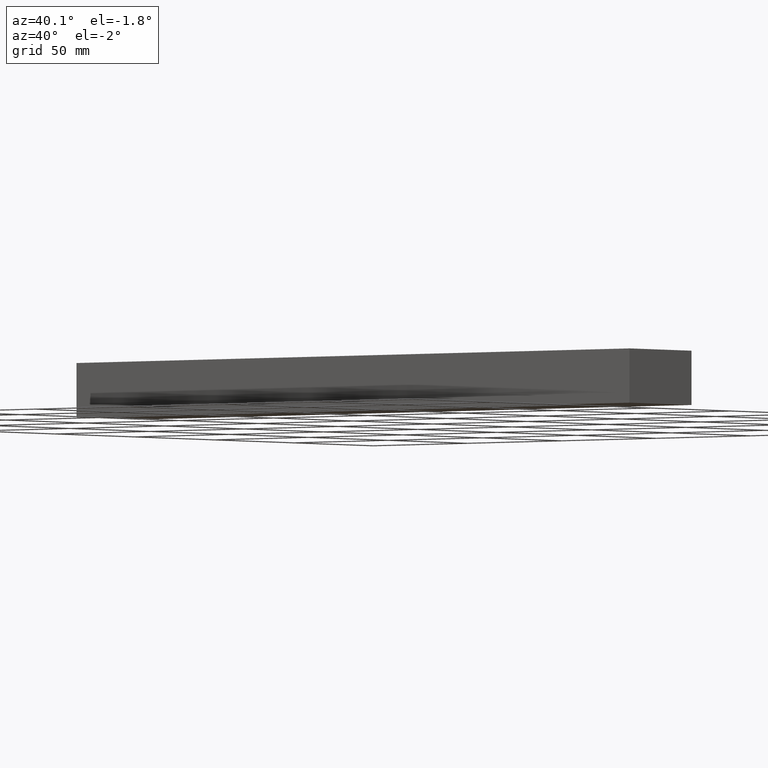
[diagram: clean part render]
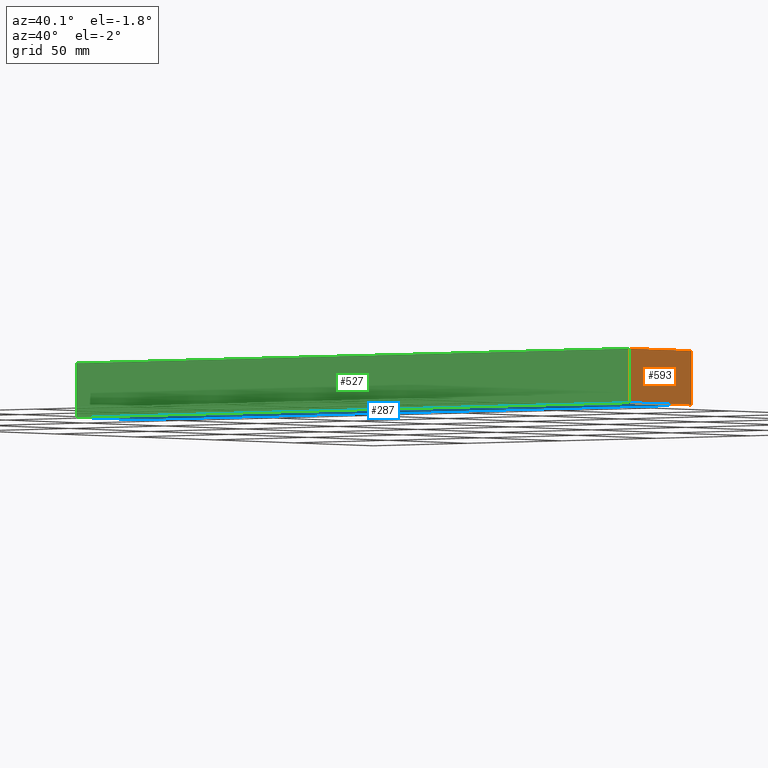
[diagram: same view with three faces highlighted in distinct colors, each labeled with its STEP entity id]
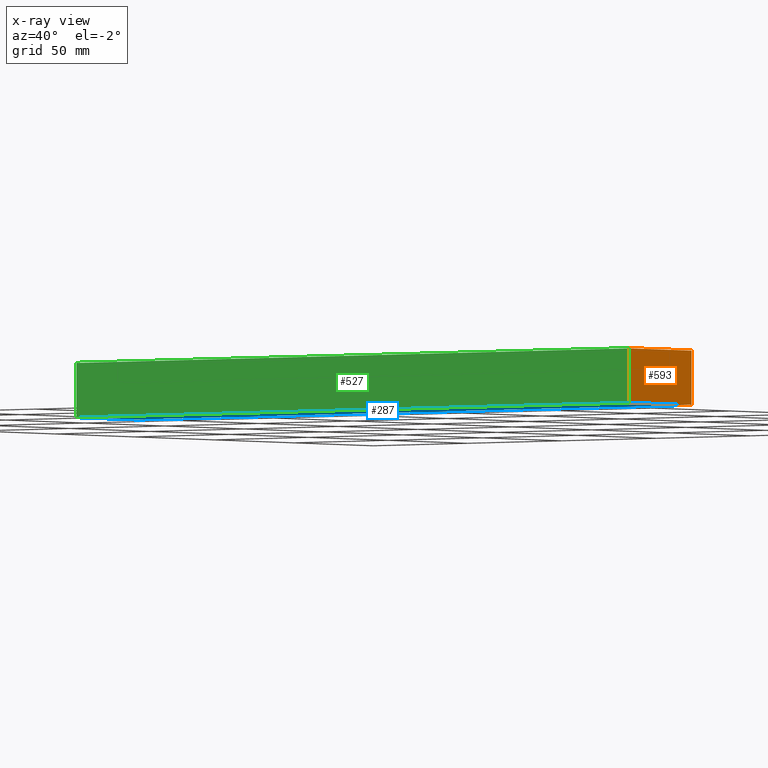
[diagram: x-ray of the same camera — body ghosted, the three highlighted faces saturated]
A machine part, auxiliary view with three faces highlighted in distinct colors.
The next image is the same camera in x-ray (body ghosted, the three faces saturated) — at least one of them is partly hidden behind the body in this view.
Their STEP definitions:

[orange] entity #593 — the highlighted planar face has unit normal (-1, -0, 0).
#593 = ADVANCED_FACE( '', ( #1296 ), #1297, .F. );
#1296 = FACE_OUTER_BOUND( '', #2083, .T. );
#1297 = PLANE( '', #2084 );
#2083 = EDGE_LOOP( '', ( #4277, #4278, #4279, #4280 ) );
#2084 = AXIS2_PLACEMENT_3D( '', #4281, #4282, #4283 );
#4277 = ORIENTED_EDGE( '', *, *, #5166, .T. );
#4278 = ORIENTED_EDGE( '', *, *, #5676, .F. );
#4279 = ORIENTED_EDGE( '', *, *, #5366, .F. );
#4280 = ORIENTED_EDGE( '', *, *, #5748, .T. );
#4281 = CARTESIAN_POINT( '', ( 146.500000000000, 5.92049001115088E-015, 22.0000000000000 ) );
#4282 = DIRECTION( '', ( -1.00000000000000, -7.11681426041768E-016, 0.000000000000000 ) );
#4283 = DIRECTION( '', ( 7.11681426041768E-016, -1.00000000000000, 0.000000000000000 ) );
#5166 = EDGE_CURVE( '', #6044, #6042, #6045, .T. );
#5366 = EDGE_CURVE( '', #6417, #6419, #6420, .T. );
#5676 = EDGE_CURVE( '', #6419, #6042, #6870, .T. );
#5748 = EDGE_CURVE( '', #6417, #6044, #6959, .T. );
#6042 = VERTEX_POINT( '', #7398 );
#6044 = VERTEX_POINT( '', #7401 );
#6045 = LINE( '', #7402, #7403 );
#6417 = VERTEX_POINT( '', #8329 );
#6419 = VERTEX_POINT( '', #8332 );
#6420 = LINE( '', #8333, #8334 );
#6870 = LINE( '', #9523, #9524 );
#6959 = LINE( '', #9714, #9715 );
#7398 = CARTESIAN_POINT( '', ( 146.500000000000, 39.0000000000000, 0.000000000000000 ) );
#7401 = CARTESIAN_POINT( '', ( 146.500000000000, 5.92049001115088E-015, 0.000000000000000 ) );
#7402 = CARTESIAN_POINT( '', ( 146.500000000000, 5.92049001115088E-015, 0.000000000000000 ) );
#7403 = VECTOR( '', #10224, 1000.00000000000 );
#8329 = CARTESIAN_POINT( '', ( 146.500000000000, 5.92049001115088E-015, 22.0000000000000 ) );
#8332 = CARTESIAN_POINT( '', ( 146.500000000000, 39.0000000000000, 22.0000000000000 ) );
#8333 = CARTESIAN_POINT( '', ( 146.500000000000, 5.92049001115088E-015, 22.0000000000000 ) );
#8334 = VECTOR( '', #10501, 1000.00000000000 );
#9523 = CARTESIAN_POINT( '', ( 146.500000000000, 39.0000000000000, 22.0000000000000 ) );
#9524 = VECTOR( '', #10770, 1000.00000000000 );
#9714 = CARTESIAN_POINT( '', ( 146.500000000000, 5.92049001115088E-015, 22.0000000000000 ) );
#9715 = VECTOR( '', #10819, 1000.00000000000 );
#10224 = DIRECTION( '', ( -7.11681426041768E-016, 1.00000000000000, 0.000000000000000 ) );
#10501 = DIRECTION( '', ( -7.11681426041768E-016, 1.00000000000000, 0.000000000000000 ) );
#10770 = DIRECTION( '', ( 0.000000000000000, 0.000000000000000, -1.00000000000000 ) );
#10819 = DIRECTION( '', ( 0.000000000000000, 0.000000000000000, -1.00000000000000 ) );

[blue] entity #287 — the highlighted planar face has unit normal (0, 0, 1).
#287 = ADVANCED_FACE( '', ( #797 ), #798, .F. );
#797 = FACE_OUTER_BOUND( '', #1568, .T. );
#798 = PLANE( '', #1569 );
#1568 = EDGE_LOOP( '', ( #2414, #2415, #2416, #2417 ) );
#1569 = AXIS2_PLACEMENT_3D( '', #2418, #2419, #2420 );
#2414 = ORIENTED_EDGE( '', *, *, #5164, .F. );
#2415 = ORIENTED_EDGE( '', *, *, #5165, .F. );
#2416 = ORIENTED_EDGE( '', *, *, #5166, .F. );
#2417 = ORIENTED_EDGE( '', *, *, #5167, .F. );
#2418 = CARTESIAN_POINT( '', ( -146.500000000000, -1.20211781203687E-014, 0.000000000000000 ) );
#2419 = DIRECTION( '', ( 0.000000000000000, 0.000000000000000, 1.00000000000000 ) );
#2420 = DIRECTION( '', ( 1.00000000000000, 0.000000000000000, 0.000000000000000 ) );
#5164 = EDGE_CURVE( '', #6039, #6040, #6041, .T. );
#5165 = EDGE_CURVE( '', #6042, #6039, #6043, .T. );
#5166 = EDGE_CURVE( '', #6044, #6042, #6045, .T. );
#5167 = EDGE_CURVE( '', #6040, #6044, #6046, .T. );
#6039 = VERTEX_POINT( '', #7394 );
#6040 = VERTEX_POINT( '', #7395 );
#6041 = LINE( '', #7396, #7397 );
#6042 = VERTEX_POINT( '', #7398 );
#6043 = LINE( '', #7399, #7400 );
#6044 = VERTEX_POINT( '', #7401 );
#6045 = LINE( '', #7402, #7403 );
#6046 = LINE( '', #7404, #7405 );
#7394 = CARTESIAN_POINT( '', ( -146.500000000000, 39.0000000000000, 0.000000000000000 ) );
#7395 = CARTESIAN_POINT( '', ( -146.500000000000, -1.20211781203687E-014, 0.000000000000000 ) );
#7396 = CARTESIAN_POINT( '', ( -146.500000000000, 39.0000000000000, 0.000000000000000 ) );
#7397 = VECTOR( '', #10222, 1000.00000000000 );
#7398 = CARTESIAN_POINT( '', ( 146.500000000000, 39.0000000000000, 0.000000000000000 ) );
#7399 = CARTESIAN_POINT( '', ( 146.500000000000, 39.0000000000000, 0.000000000000000 ) );
#7400 = VECTOR( '', #10223, 1000.00000000000 );
#7401 = CARTESIAN_POINT( '', ( 146.500000000000, 5.92049001115088E-015, 0.000000000000000 ) );
#7402 = CARTESIAN_POINT( '', ( 146.500000000000, 5.92049001115088E-015, 0.000000000000000 ) );
#7403 = VECTOR( '', #10224, 1000.00000000000 );
#7404 = CARTESIAN_POINT( '', ( -146.500000000000, -1.20211781203687E-014, 0.000000000000000 ) );
#7405 = VECTOR( '', #10225, 1000.00000000000 );
#10222 = DIRECTION( '', ( -7.11681426041767E-016, -1.00000000000000, 0.000000000000000 ) );
#10223 = DIRECTION( '', ( -1.00000000000000, 1.65775622277647E-016, 0.000000000000000 ) );
#10224 = DIRECTION( '', ( -7.11681426041768E-016, 1.00000000000000, 0.000000000000000 ) );
#10225 = DIRECTION( '', ( 1.00000000000000, 6.12343622236165E-017, 0.000000000000000 ) );

[green] entity #527 — the highlighted planar face has unit normal (-0, 1, 0).
#527 = ADVANCED_FACE( '', ( #1196 ), #1197, .F. );
#1196 = FACE_OUTER_BOUND( '', #1980, .T. );
#1197 = PLANE( '', #1981 );
#1980 = EDGE_LOOP( '', ( #3915, #3916, #3917, #3918 ) );
#1981 = AXIS2_PLACEMENT_3D( '', #3919, #3920, #3921 );
#3915 = ORIENTED_EDGE( '', *, *, #5167, .T. );
#3916 = ORIENTED_EDGE( '', *, *, #5748, .F. );
#3917 = ORIENTED_EDGE( '', *, *, #5365, .F. );
#3918 = ORIENTED_EDGE( '', *, *, #5749, .T. );
#3919 = CARTESIAN_POINT( '', ( -146.500000000000, -1.20211781203687E-014, 22.0000000000000 ) );
#3920 = DIRECTION( '', ( -6.12343622236165E-017, 1.00000000000000, 0.000000000000000 ) );
#3921 = DIRECTION( '', ( -1.00000000000000, -6.12343622236165E-017, 0.000000000000000 ) );
#5167 = EDGE_CURVE( '', #6040, #6044, #6046, .T. );
#5365 = EDGE_CURVE( '', #6415, #6417, #6418, .T. );
#5748 = EDGE_CURVE( '', #6417, #6044, #6959, .T. );
#5749 = EDGE_CURVE( '', #6415, #6040, #6960, .T. );
#6040 = VERTEX_POINT( '', #7395 );
#6044 = VERTEX_POINT( '', #7401 );
#6046 = LINE( '', #7404, #7405 );
#6415 = VERTEX_POINT( '', #8326 );
#6417 = VERTEX_POINT( '', #8329 );
#6418 = LINE( '', #8330, #8331 );
#6959 = LINE( '', #9714, #9715 );
#6960 = LINE( '', #9716, #9717 );
#7395 = CARTESIAN_POINT( '', ( -146.500000000000, -1.20211781203687E-014, 0.000000000000000 ) );
#7401 = CARTESIAN_POINT( '', ( 146.500000000000, 5.92049001115088E-015, 0.000000000000000 ) );
#7404 = CARTESIAN_POINT( '', ( -146.500000000000, -1.20211781203687E-014, 0.000000000000000 ) );
#7405 = VECTOR( '', #10225, 1000.00000000000 );
#8326 = CARTESIAN_POINT( '', ( -146.500000000000, -1.20211781203687E-014, 22.0000000000000 ) );
#8329 = CARTESIAN_POINT( '', ( 146.500000000000, 5.92049001115088E-015, 22.0000000000000 ) );
#8330 = CARTESIAN_POINT( '', ( -146.500000000000, -1.20211781203687E-014, 22.0000000000000 ) );
#8331 = VECTOR( '', #10500, 1000.00000000000 );
#9714 = CARTESIAN_POINT( '', ( 146.500000000000, 5.92049001115088E-015, 22.0000000000000 ) );
#9715 = VECTOR( '', #10819, 1000.00000000000 );
#9716 = CARTESIAN_POINT( '', ( -146.500000000000, -1.20211781203687E-014, 22.0000000000000 ) );
#9717 = VECTOR( '', #10820, 1000.00000000000 );
#10225 = DIRECTION( '', ( 1.00000000000000, 6.12343622236165E-017, 0.000000000000000 ) );
#10500 = DIRECTION( '', ( 1.00000000000000, 6.12343622236165E-017, 0.000000000000000 ) );
#10819 = DIRECTION( '', ( 0.000000000000000, 0.000000000000000, -1.00000000000000 ) );
#10820 = DIRECTION( '', ( 0.000000000000000, 0.000000000000000, -1.00000000000000 ) );